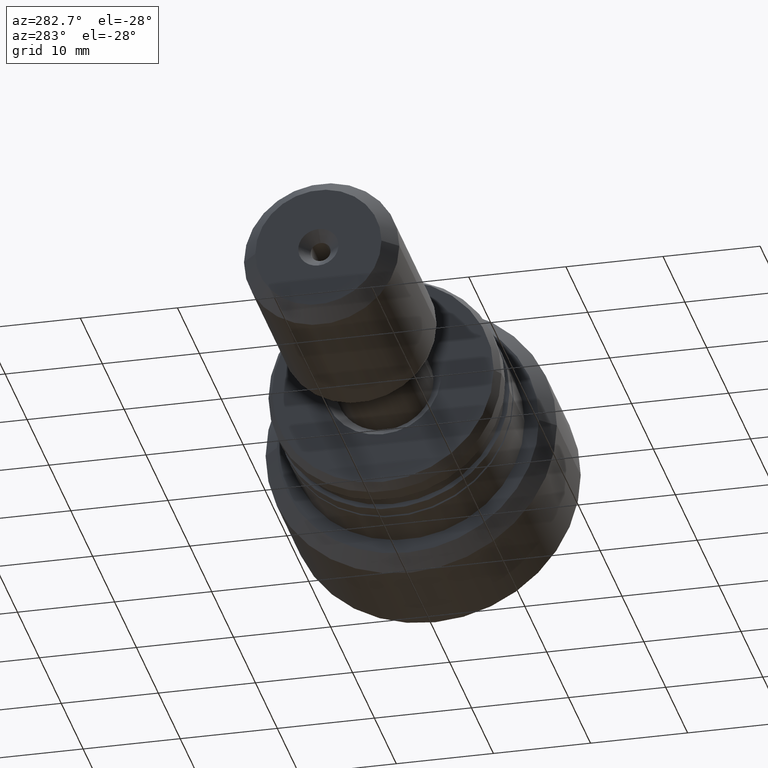
[diagram: clean part render]
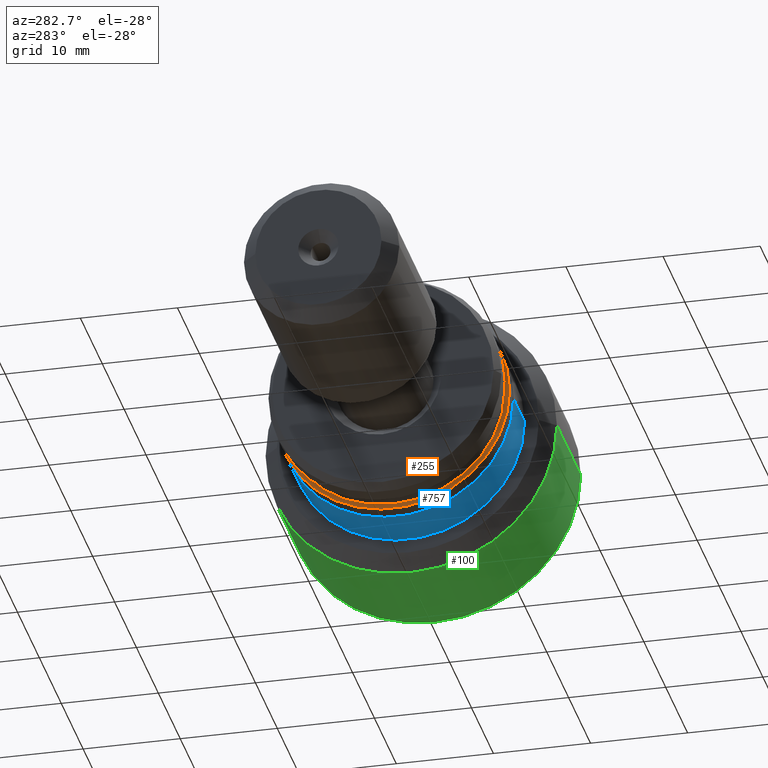
[diagram: same view with three faces highlighted in distinct colors, each labeled with its STEP entity id]
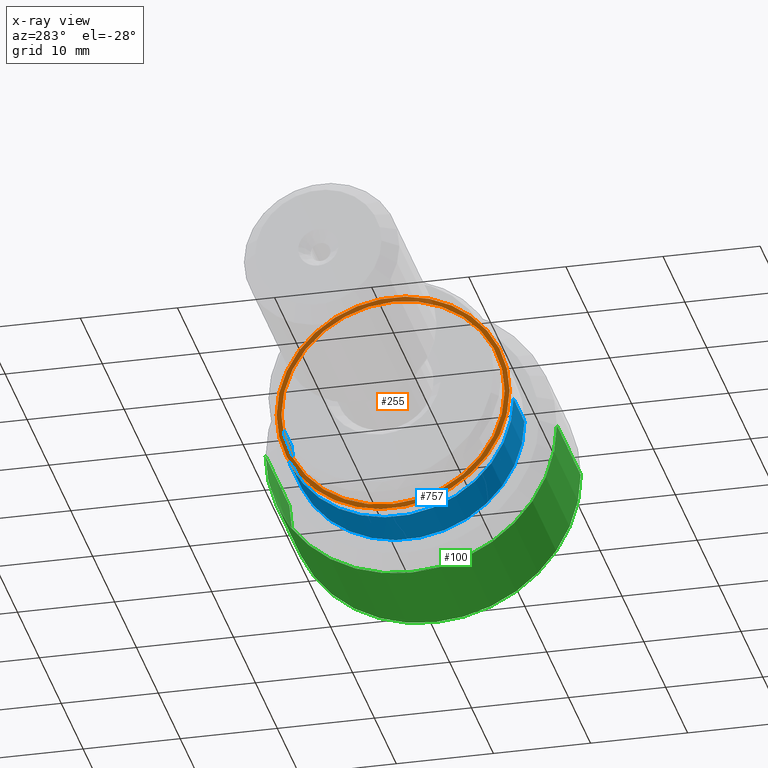
[diagram: x-ray of the same camera — body ghosted, the three highlighted faces saturated]
A machine part, auxiliary view with three faces highlighted in distinct colors.
The next image is the same camera in x-ray (body ghosted, the three faces saturated) — at least one of them is partly hidden behind the body in this view.
Their STEP definitions:

[orange] entity #255 — the highlighted planar face has unit normal (-1, 0, 0).
#120 = CARTESIAN_POINT ( 'NONE',  ( -19.79999999999999361, 11.99999999999998934, 1.469576158976823553E-15 ) ) ;
#148 = CARTESIAN_POINT ( 'NONE',  ( -19.79999999999999361, 11.49999999999998224, 1.408343819019455190E-15 ) ) ;
#213 = AXIS2_PLACEMENT_3D ( 'NONE', #1625, #2230, #2285 ) ;
#249 = DIRECTION ( 'NONE',  ( -1.000000000000000000, 6.415603269213350828E-16, -0.000000000000000000 ) ) ;
#255 = ADVANCED_FACE ( 'NONE', ( #1724, #1540 ), #485, .T. ) ;
#278 = DIRECTION ( 'NONE',  ( -6.415603269213350828E-16, -1.000000000000000000, 0.000000000000000000 ) ) ;
#326 = ORIENTED_EDGE ( 'NONE', *, *, #1027, .F. ) ;
#379 = ORIENTED_EDGE ( 'NONE', *, *, #424, .F. ) ;
#388 = AXIS2_PLACEMENT_3D ( 'NONE', #1088, #530, #506 ) ;
#396 = VERTEX_POINT ( 'NONE', #120 ) ;
#424 = EDGE_CURVE ( 'NONE', #480, #970, #1461, .T. ) ;
#444 = CARTESIAN_POINT ( 'NONE',  ( -19.80000000000000782, -11.49999999999999645, 0.000000000000000000 ) ) ;
#446 = AXIS2_PLACEMENT_3D ( 'NONE', #1054, #249, #1028 ) ;
#480 = VERTEX_POINT ( 'NONE', #148 ) ;
#485 = PLANE ( 'NONE',  #1305 ) ;
#506 = DIRECTION ( 'NONE',  ( -6.033820786006290648E-16, -1.000000000000000000, 0.000000000000000000 ) ) ;
#530 = DIRECTION ( 'NONE',  ( -1.000000000000000000, 6.415603269213350828E-16, -0.000000000000000000 ) ) ;
#563 = AXIS2_PLACEMENT_3D ( 'NONE', #1257, #1079, #2033 ) ;
#772 = CIRCLE ( 'NONE', #213, 11.49999999999998934 ) ;
#955 = EDGE_LOOP ( 'NONE', ( #2351, #1178 ) ) ;
#970 = VERTEX_POINT ( 'NONE', #1640 ) ;
#1027 = EDGE_CURVE ( 'NONE', #970, #480, #772, .T. ) ;
#1028 = DIRECTION ( 'NONE',  ( -5.782411586589358625E-16, -1.000000000000000000, 0.000000000000000000 ) ) ;
#1054 = CARTESIAN_POINT ( 'NONE',  ( -19.80000000000000071, -6.723566832492926967E-15, 0.000000000000000000 ) ) ;
#1079 = DIRECTION ( 'NONE',  ( -1.000000000000000000, 6.415603269213350828E-16, -0.000000000000000000 ) ) ;
#1088 = CARTESIAN_POINT ( 'NONE',  ( -19.80000000000000071, -6.723566832492926967E-15, 0.000000000000000000 ) ) ;
#1161 = EDGE_LOOP ( 'NONE', ( #326, #379 ) ) ;
#1174 = EDGE_CURVE ( 'NONE', #1870, #396, #1711, .T. ) ;
#1178 = ORIENTED_EDGE ( 'NONE', *, *, #2014, .T. ) ;
#1257 = CARTESIAN_POINT ( 'NONE',  ( -19.80000000000000071, -6.723566832492926967E-15, 0.000000000000000000 ) ) ;
#1305 = AXIS2_PLACEMENT_3D ( 'NONE', #444, #1639, #278 ) ;
#1461 = CIRCLE ( 'NONE', #388, 11.49999999999998934 ) ;
#1540 = FACE_BOUND ( 'NONE', #1161, .T. ) ;
#1597 = CARTESIAN_POINT ( 'NONE',  ( -19.80000000000000782, -12.00000000000000355, 0.000000000000000000 ) ) ;
#1625 = CARTESIAN_POINT ( 'NONE',  ( -19.80000000000000071, -6.723566832492926967E-15, 0.000000000000000000 ) ) ;
#1631 = CIRCLE ( 'NONE', #563, 11.99999999999999645 ) ;
#1639 = DIRECTION ( 'NONE',  ( -1.000000000000000000, 6.415603269213350828E-16, 0.000000000000000000 ) ) ;
#1640 = CARTESIAN_POINT ( 'NONE',  ( -19.80000000000000782, -11.49999999999999645, 0.000000000000000000 ) ) ;
#1711 = CIRCLE ( 'NONE', #446, 11.99999999999999645 ) ;
#1724 = FACE_OUTER_BOUND ( 'NONE', #955, .T. ) ;
#1870 = VERTEX_POINT ( 'NONE', #1597 ) ;
#2014 = EDGE_CURVE ( 'NONE', #396, #1870, #1631, .T. ) ;
#2033 = DIRECTION ( 'NONE',  ( -5.782411586589358625E-16, -1.000000000000000000, 0.000000000000000000 ) ) ;
#2230 = DIRECTION ( 'NONE',  ( -1.000000000000000000, 6.415603269213350828E-16, -0.000000000000000000 ) ) ;
#2285 = DIRECTION ( 'NONE',  ( -6.033820786006290648E-16, -1.000000000000000000, 0.000000000000000000 ) ) ;
#2351 = ORIENTED_EDGE ( 'NONE', *, *, #1174, .T. ) ;

[blue] entity #757 — the highlighted cylindrical surface (partial cylindrical patch) has radius 12 mm, axis along (-1, 0, 0).
#115 = LINE ( 'NONE', #342, #894 ) ;
#156 = DIRECTION ( 'NONE',  ( -1.000000000000000000, 6.415603269213350828E-16, -0.000000000000000000 ) ) ;
#205 = EDGE_LOOP ( 'NONE', ( #2375, #294, #879, #1627 ) ) ;
#253 = CYLINDRICAL_SURFACE ( 'NONE', #1989, 11.99999999999999289 ) ;
#294 = ORIENTED_EDGE ( 'NONE', *, *, #922, .T. ) ;
#306 = LINE ( 'NONE', #1799, #1173 ) ;
#342 = CARTESIAN_POINT ( 'NONE',  ( -30.28002276692731698, 11.99999999999999289, 1.469576158976823158E-15 ) ) ;
#569 = CIRCLE ( 'NONE', #896, 11.99999999999999467 ) ;
#691 = CIRCLE ( 'NONE', #807, 11.99999999999999289 ) ;
#715 = CARTESIAN_POINT ( 'NONE',  ( -12.99999999999998401, 11.99999999999998224, 1.469576158976823158E-15 ) ) ;
#757 = ADVANCED_FACE ( 'NONE', ( #1929 ), #253, .T. ) ;
#807 = AXIS2_PLACEMENT_3D ( 'NONE', #1113, #927, #1495 ) ;
#879 = ORIENTED_EDGE ( 'NONE', *, *, #986, .T. ) ;
#894 = VECTOR ( 'NONE', #2040, 1000.000000000000000 ) ;
#896 = AXIS2_PLACEMENT_3D ( 'NONE', #1621, #1996, #2012 ) ;
#916 = VERTEX_POINT ( 'NONE', #715 ) ;
#922 = EDGE_CURVE ( 'NONE', #916, #2105, #691, .T. ) ;
#927 = DIRECTION ( 'NONE',  ( -1.000000000000000000, 6.415603269213350828E-16, -0.000000000000000000 ) ) ;
#977 = EDGE_CURVE ( 'NONE', #916, #2103, #115, .T. ) ;
#986 = EDGE_CURVE ( 'NONE', #2105, #1712, #306, .T. ) ;
#1113 = CARTESIAN_POINT ( 'NONE',  ( -12.99999999999999112, -1.108617705555801452E-14, 0.000000000000000000 ) ) ;
#1153 = CARTESIAN_POINT ( 'NONE',  ( -12.99999999999999822, -12.00000000000000355, 0.000000000000000000 ) ) ;
#1173 = VECTOR ( 'NONE', #156, 1000.000000000000000 ) ;
#1316 = CARTESIAN_POINT ( 'NONE',  ( -17.99999999999999289, 11.99999999999998579, 1.469576158976823553E-15 ) ) ;
#1339 = CARTESIAN_POINT ( 'NONE',  ( -18.00000000000000711, -12.00000000000000355, 0.000000000000000000 ) ) ;
#1377 = DIRECTION ( 'NONE',  ( -5.782411586589360597E-16, -1.000000000000000000, 0.000000000000000000 ) ) ;
#1402 = EDGE_CURVE ( 'NONE', #2103, #1712, #569, .T. ) ;
#1428 = CARTESIAN_POINT ( 'NONE',  ( -30.28002276692732408, 0.000000000000000000, 0.000000000000000000 ) ) ;
#1495 = DIRECTION ( 'NONE',  ( -5.782411586589360597E-16, -1.000000000000000000, 0.000000000000000000 ) ) ;
#1604 = DIRECTION ( 'NONE',  ( -1.000000000000000000, 6.415603269213350828E-16, -0.000000000000000000 ) ) ;
#1621 = CARTESIAN_POINT ( 'NONE',  ( -18.00000000000000000, -7.878375420951333982E-15, 0.000000000000000000 ) ) ;
#1627 = ORIENTED_EDGE ( 'NONE', *, *, #1402, .F. ) ;
#1712 = VERTEX_POINT ( 'NONE', #1339 ) ;
#1799 = CARTESIAN_POINT ( 'NONE',  ( -30.28002276692733119, -11.99999999999999289, 0.000000000000000000 ) ) ;
#1929 = FACE_OUTER_BOUND ( 'NONE', #205, .T. ) ;
#1989 = AXIS2_PLACEMENT_3D ( 'NONE', #1428, #1604, #1377 ) ;
#1996 = DIRECTION ( 'NONE',  ( -1.000000000000000000, 6.415603269213350828E-16, -0.000000000000000000 ) ) ;
#2012 = DIRECTION ( 'NONE',  ( -5.782411586589359611E-16, -1.000000000000000000, 0.000000000000000000 ) ) ;
#2040 = DIRECTION ( 'NONE',  ( -1.000000000000000000, 6.415603269213350828E-16, -0.000000000000000000 ) ) ;
#2103 = VERTEX_POINT ( 'NONE', #1316 ) ;
#2105 = VERTEX_POINT ( 'NONE', #1153 ) ;
#2375 = ORIENTED_EDGE ( 'NONE', *, *, #977, .F. ) ;

[green] entity #100 — the highlighted cylindrical surface (partial cylindrical patch) has radius 15 mm, axis along (-1, 0, 0).
#7 = VERTEX_POINT ( 'NONE', #1391 ) ;
#100 = ADVANCED_FACE ( 'NONE', ( #1988 ), #2307, .T. ) ;
#159 = DIRECTION ( 'NONE',  ( -1.000000000000000000, 6.415603269213350828E-16, -0.000000000000000000 ) ) ;
#277 = ORIENTED_EDGE ( 'NONE', *, *, #1492, .F. ) ;
#324 = DIRECTION ( 'NONE',  ( -1.000000000000000000, 6.415603269213350828E-16, -0.000000000000000000 ) ) ;
#330 = EDGE_CURVE ( 'NONE', #1345, #7, #1608, .T. ) ;
#386 = EDGE_CURVE ( 'NONE', #1853, #1345, #825, .T. ) ;
#422 = DIRECTION ( 'NONE',  ( -6.938893903907233308E-16, -1.000000000000000000, 0.000000000000000000 ) ) ;
#558 = DIRECTION ( 'NONE',  ( -1.000000000000000000, 6.415603269213350828E-16, -0.000000000000000000 ) ) ;
#564 = CIRCLE ( 'NONE', #1820, 14.99999999999998934 ) ;
#665 = CARTESIAN_POINT ( 'NONE',  ( -30.28002276692731343, 14.99999999999998579, 1.836970198721028011E-15 ) ) ;
#696 = EDGE_CURVE ( 'NONE', #786, #7, #564, .T. ) ;
#786 = VERTEX_POINT ( 'NONE', #1738 ) ;
#808 = CARTESIAN_POINT ( 'NONE',  ( -0.6000000000006998624, -15.00000000000000178, 0.000000000000000000 ) ) ;
#813 = CARTESIAN_POINT ( 'NONE',  ( -0.6000000000006902034, -1.904152510938211848E-14, 0.000000000000000000 ) ) ;
#820 = DIRECTION ( 'NONE',  ( -6.938893903907235280E-16, -1.000000000000000000, 0.000000000000000000 ) ) ;
#825 = CIRCLE ( 'NONE', #2202, 14.99999999999998224 ) ;
#978 = VECTOR ( 'NONE', #324, 1000.000000000000000 ) ;
#1036 = CARTESIAN_POINT ( 'NONE',  ( -30.28002276692733474, -14.99999999999998579, 0.000000000000000000 ) ) ;
#1147 = AXIS2_PLACEMENT_3D ( 'NONE', #2127, #159, #820 ) ;
#1216 = DIRECTION ( 'NONE',  ( -1.000000000000000000, 6.415603269213350828E-16, -0.000000000000000000 ) ) ;
#1270 = LINE ( 'NONE', #665, #978 ) ;
#1345 = VERTEX_POINT ( 'NONE', #808 ) ;
#1391 = CARTESIAN_POINT ( 'NONE',  ( -11.50000000000069100, -15.00000000000000178, 1.836970198721028406E-15 ) ) ;
#1492 = EDGE_CURVE ( 'NONE', #1853, #786, #1270, .T. ) ;
#1570 = DIRECTION ( 'NONE',  ( -1.000000000000000000, 6.415603269213350828E-16, -0.000000000000000000 ) ) ;
#1584 = CARTESIAN_POINT ( 'NONE',  ( -0.6000000000006806555, 14.99999999999996270, 1.836970198721027617E-15 ) ) ;
#1608 = LINE ( 'NONE', #1036, #2163 ) ;
#1738 = CARTESIAN_POINT ( 'NONE',  ( -11.50000000000066969, 14.99999999999997691, 0.000000000000000000 ) ) ;
#1820 = AXIS2_PLACEMENT_3D ( 'NONE', #2124, #558, #422 ) ;
#1853 = VERTEX_POINT ( 'NONE', #1584 ) ;
#1946 = DIRECTION ( 'NONE',  ( -6.432932890080667202E-16, -1.000000000000000000, 0.000000000000000000 ) ) ;
#1988 = FACE_OUTER_BOUND ( 'NONE', #2310, .T. ) ;
#2027 = ORIENTED_EDGE ( 'NONE', *, *, #386, .T. ) ;
#2030 = ORIENTED_EDGE ( 'NONE', *, *, #330, .T. ) ;
#2124 = CARTESIAN_POINT ( 'NONE',  ( -11.50000000000068034, -1.204851754593957361E-14, 0.000000000000000000 ) ) ;
#2127 = CARTESIAN_POINT ( 'NONE',  ( -30.28002276692732408, 0.000000000000000000, 0.000000000000000000 ) ) ;
#2163 = VECTOR ( 'NONE', #1216, 1000.000000000000000 ) ;
#2202 = AXIS2_PLACEMENT_3D ( 'NONE', #813, #1570, #1946 ) ;
#2307 = CYLINDRICAL_SURFACE ( 'NONE', #1147, 14.99999999999998579 ) ;
#2310 = EDGE_LOOP ( 'NONE', ( #277, #2027, #2030, #2416 ) ) ;
#2416 = ORIENTED_EDGE ( 'NONE', *, *, #696, .F. ) ;